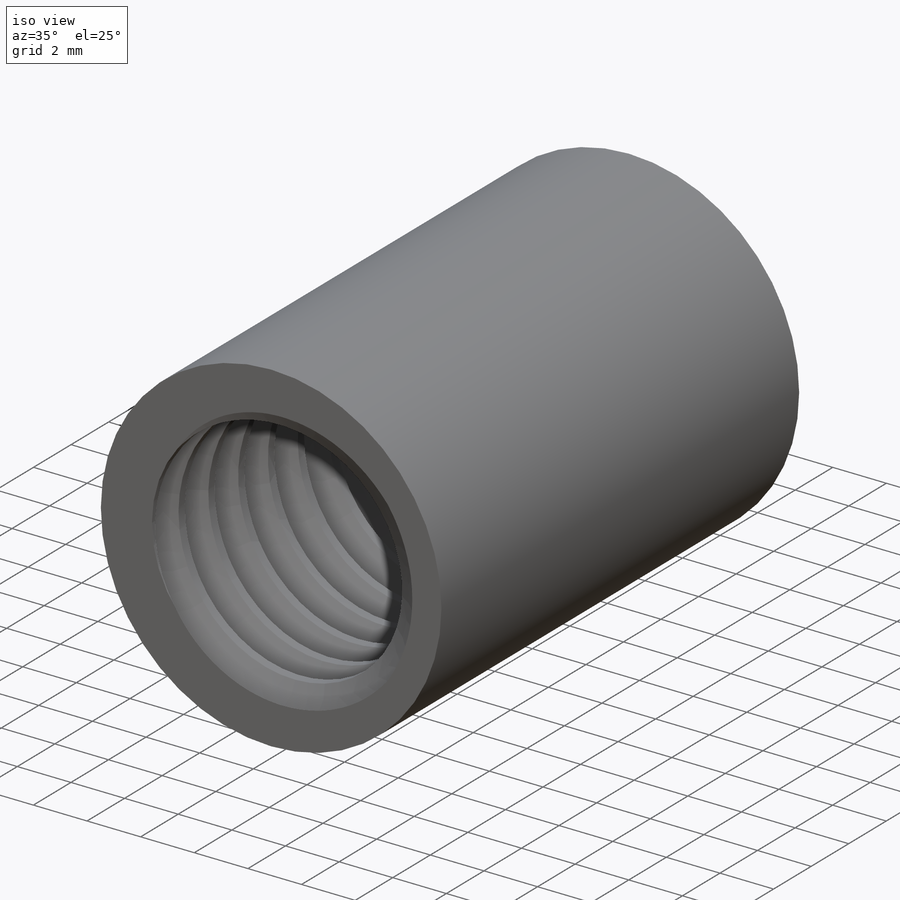
[diagram: iso view]
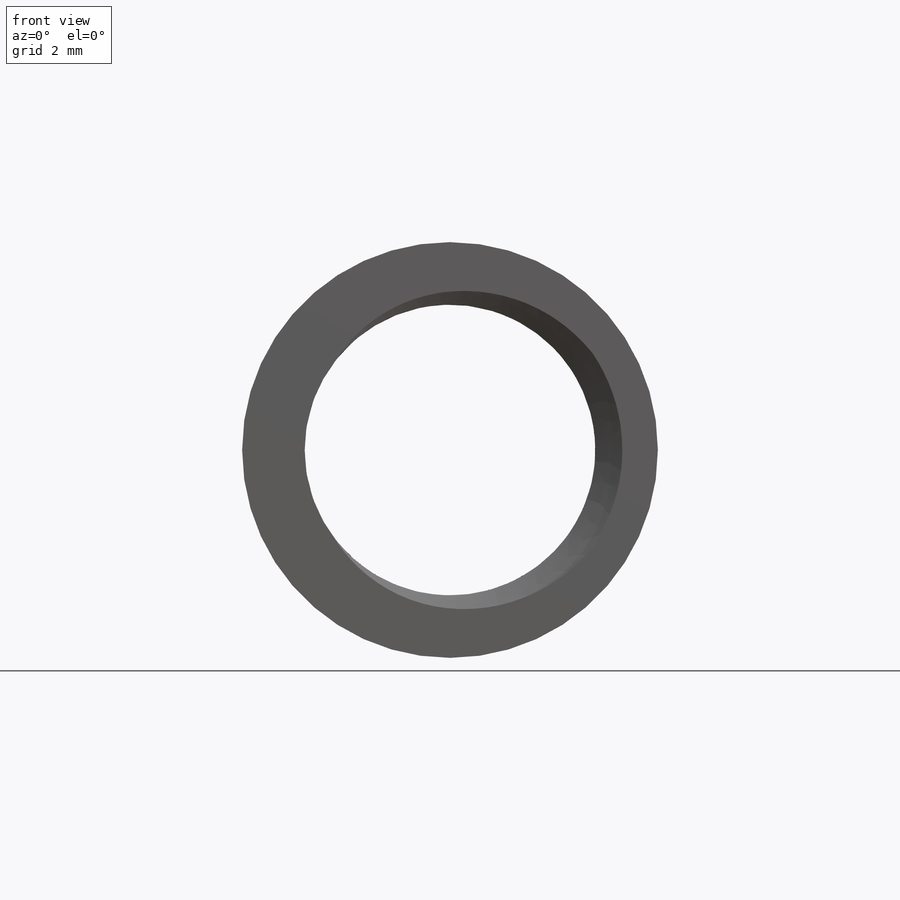
[diagram: front view]
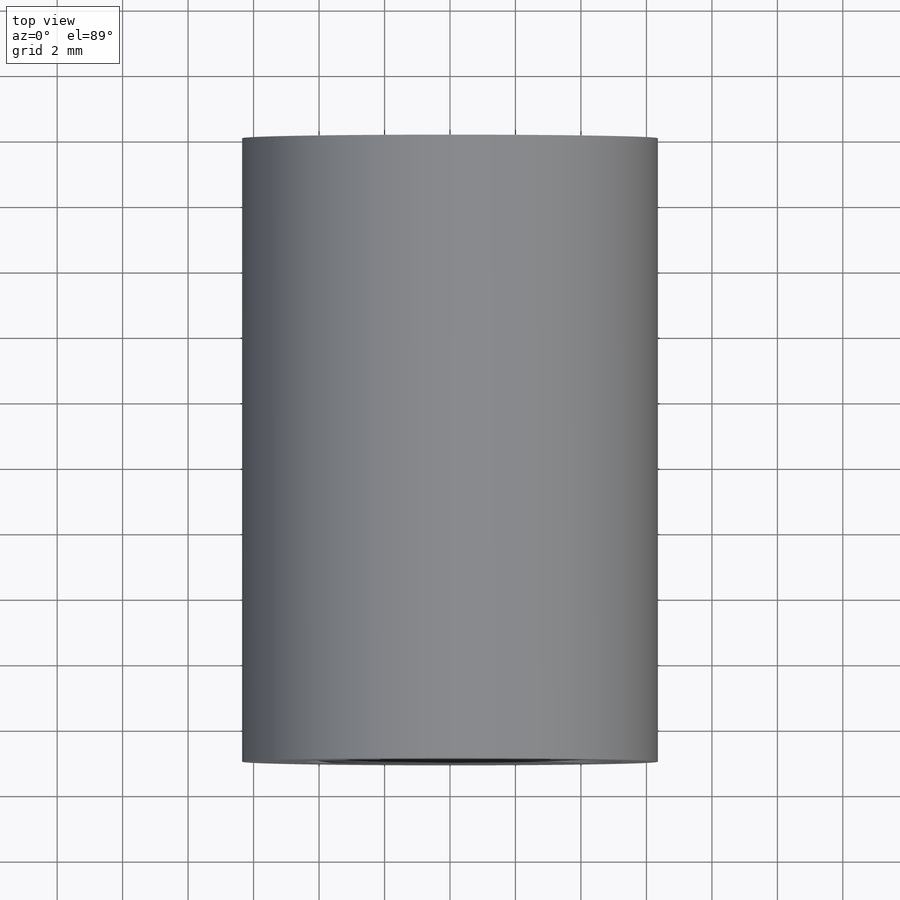
[diagram: top view]
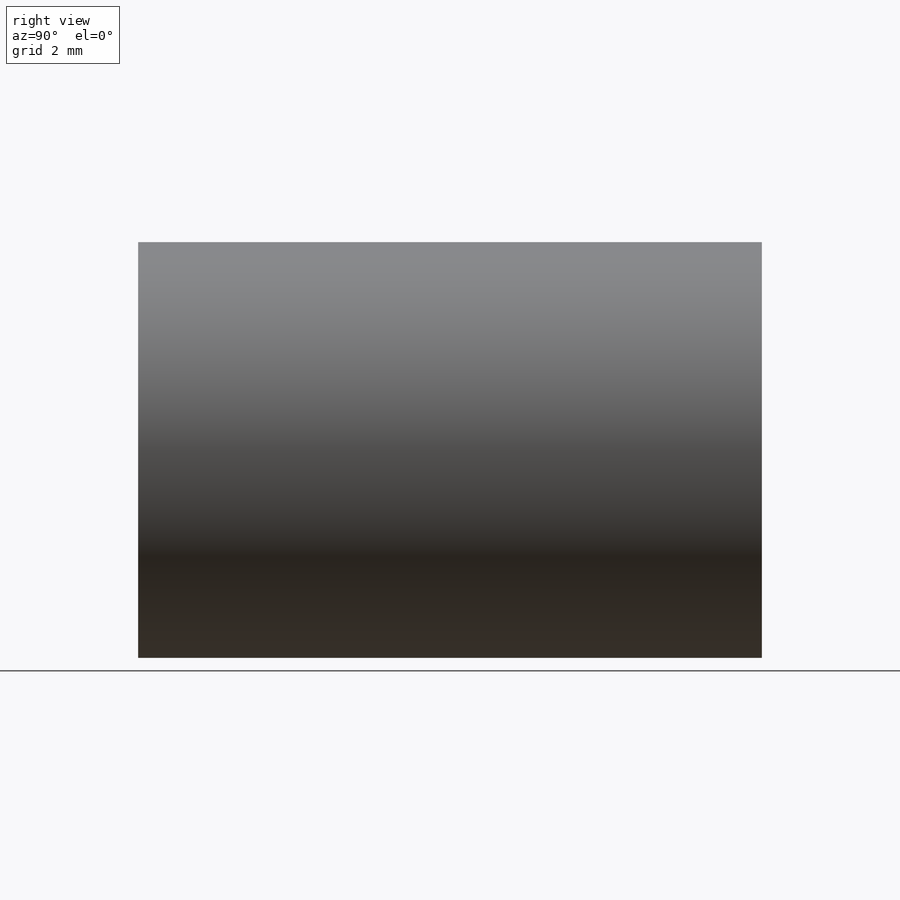
[diagram: right view]
SOLIDWORKS PART (.sldprt)
format: sldprt  version: not decoded by parser v0  size: 538,112 bytes
history: native  units: mm
features: sketch x4, material x1, extrude x1, cut_extrude x1, helix x1, sweep x1 (+13 scaffold rows collapsed)
feature tree (22):
  scaffold x13  (default folders/planes/origin — collapsed)
  material  "Material <not specified>"
  sketch  "Sketch1"  dims[D1=12.7mm]
  extrude  "Boss-Extrude1"  Depth=19.05mm
  sketch  "Sketch2"  dims[D1=8.89mm]
  cut_extrude  "Cut-Extrude1"  [1 undecoded]
  sketch  "Sketch3"  dims[D1=8.89mm]
  helix  "Helix/Spiral1"  Pitch=25.4mm
  sketch  "Sketch4"  dims[c1.D1=~1.24968mm c1.D2=0.3048mm c1.D3=~0.94488mm c1.D4=~0.94488mm c2.D4=60.0deg c2.D3=~1.24968mm c3.D3=90.0deg c4.D3=~1.24968mm]
  sweep  "Cut-Sweep1"
decode coverage: 6 of 8 modeling features carry decoded parameters
note: ~ marks probable driven/reference dimensions
note: 1 parameter value undecoded
note: suppression state not decoded; provenance and decode notes live in map.json
